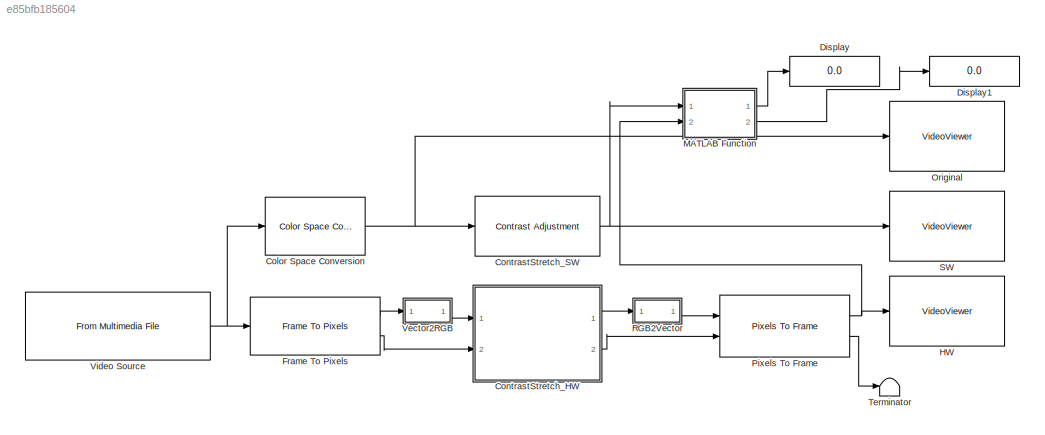
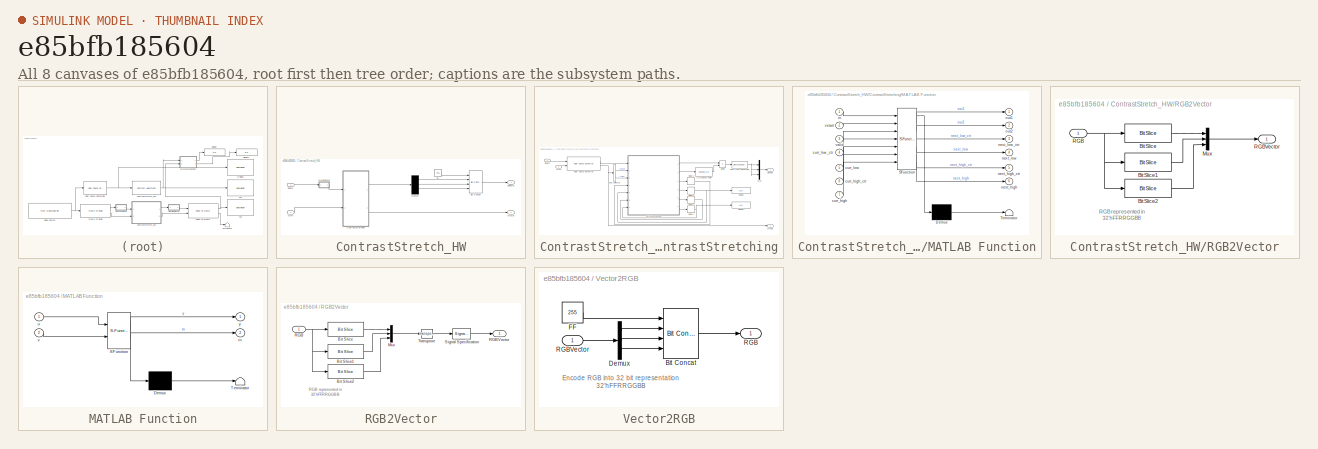
[diagram: thumbnail index - all 8 canvases of the model, root first then tree order]
MODEL slx_e85bfb185604
KIND model
CONFIG AbsTol = auto
CONFIG EnableMultiTasking = off
CONFIG FixedStep = auto
CONFIG InitFcn = Ts = 1e-3;\nTs_240p = 402*324*Ts;\nTs_480p = 525*800*Ts;\n\n
CONFIG MaxStep = auto
CONFIG MinStep = auto
CONFIG RelTol = 1e-3
CONFIG SampleTimeConstraint = Unconstrained
CONFIG SolverName = FixedStepDiscrete
CONFIG StartTime = 0.0
CONFIG StopTime = Ts_240p*20
BLOCK [Reference] Color Space Conversion  REF=visionconversions/Color Space
 Conversion
  Ports = [1, 1]
  SourceBlock = visionconversions/Color Space\n Conversion
  SourceProductBaseCode = VP
  SourceType = Color Space Conversion
BLOCK [SubSystem] ContrastStretch_HW
  Ports = [2, 2]
  RequestExecContextInheritance = off
  TreatAsAtomicUnit = on
BLOCK [Reference] ContrastStretch_HW/Bit Concat  REF=hdlsllib/Logic and Bit
Operations/Bit Concat
  Ports = [4, 1]
  SourceBlock = hdlsllib/Logic and Bit\nOperations/Bit Concat
  SourceProductBaseCode = SL
  SourceType = Bit Concat
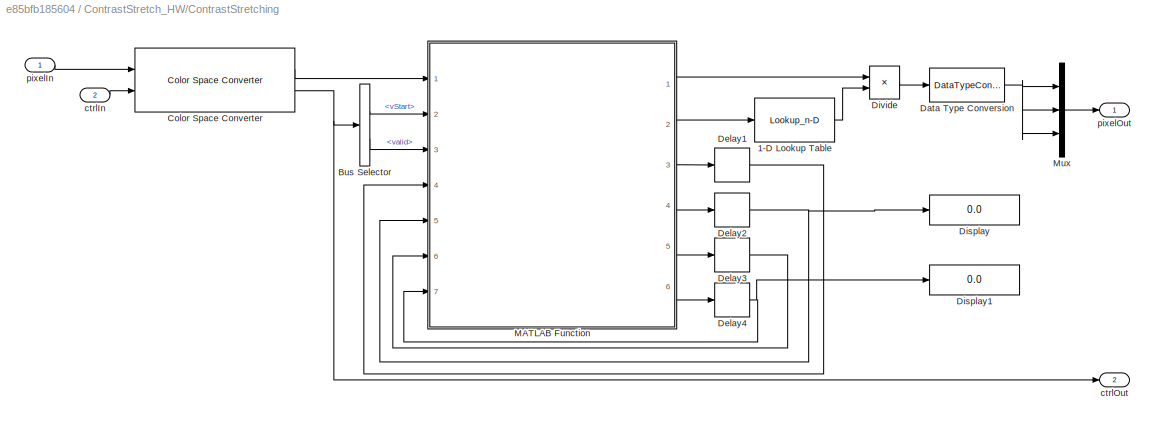
BLOCK [SubSystem] ContrastStretch_HW/ContrastStretching
  Ports = [2, 2]
  RequestExecContextInheritance = off
  TreatAsAtomicUnit = on
BLOCK [Lookup_n-D] ContrastStretch_HW/ContrastStretching/1-D Lookup Table
  BreakpointsForDimension1 = [1:255]
  BreakpointsForDimension1FirstPoint = 10
  BreakpointsForDimension1Spacing = 12
  BreakpointsForDimension2FirstPoint = 10
  BreakpointsForDimension2Spacing = 12
  DiagnosticForOutOfRangeInput = Error
  IndexSearchMethod = Evenly spaced points
  InputPortMap = u0
  InternalRulePriority = Speed
  InterpMethod = Flat
  LookupTableObject = ''
  NumberOfTableDimensions = 1
  OutDataTypeStr = fixdt(0,16,8)
  Ports = [1, 1]
  RndMeth = Simplest
  Table = 255./[1:255]
  TableDataTypeStr = fixdt(0,16,8)
BLOCK [BusSelector] ContrastStretch_HW/ContrastStretching/Bus Selector
  OutputSignals = vStart,valid
  Ports = [1, 2]
BLOCK [Reference] ContrastStretch_HW/ContrastStretching/Color Space Converter  REF=visionhdlconversions/Color Space Converter
  Ports = [2, 2]
  SourceBlock = visionhdlconversions/Color Space Converter
  SourceProductBaseCode = VT
  SourceType = Color Space Converter
BLOCK [DataTypeConversion] ContrastStretch_HW/ContrastStretching/Data Type Conversion
  OutDataTypeStr = uint8
  RndMeth = Floor
BLOCK [Delay] ContrastStretch_HW/ContrastStretching/Delay1
  DelayLength = 1
  InitialCondition = 0
  InputPortMap = u0
  Ports = [1, 1]
BLOCK [Delay] ContrastStretch_HW/ContrastStretching/Delay2
  DelayLength = 1
  InitialCondition = 150
  InputPortMap = u0
  Ports = [1, 1]
BLOCK [Delay] ContrastStretch_HW/ContrastStretching/Delay3
  DelayLength = 1
  InitialCondition = 0
  InputPortMap = u0
  Ports = [1, 1]
BLOCK [Delay] ContrastStretch_HW/ContrastStretching/Delay4
  DelayLength = 1
  InitialCondition = 250
  InputPortMap = u0
  Ports = [1, 1]
BLOCK [Display] ContrastStretch_HW/ContrastStretching/Display
  Decimation = 1
  Ports = [1]
BLOCK [Display] ContrastStretch_HW/ContrastStretching/Display1
  Decimation = 1
  Ports = [1]
BLOCK [Product] ContrastStretch_HW/ContrastStretching/Divide
  Inputs = **
  Ports = [2, 1]
  RndMeth = Zero
  SaturateOnIntegerOverflow = on
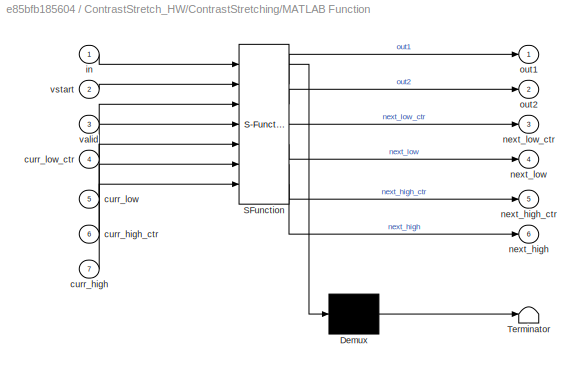
BLOCK [SubSystem] ContrastStretch_HW/ContrastStretching/MATLAB Function
  ErrorFcn = Stateflow.Translate.translate
  PermitHierarchicalResolution = ExplicitOnly
  Ports = [7, 6]
  RequestExecContextInheritance = off
  SFBlockType = MATLAB Function
  TreatAsAtomicUnit = on
BLOCK [Demux] ContrastStretch_HW/ContrastStretching/MATLAB Function/ Demux 
  Outputs = 1
  Ports = [1, 1]
BLOCK [S-Function] ContrastStretch_HW/ContrastStretching/MATLAB Function/ SFunction 
  EnableBusSupport = on
  FunctionName = sf_sfun
  PortCounts = [7 7]
  Ports = [7, 7]
  SFcnIsStateOwnerBlock = off
  SFunctionDeploymentMode = off
  Tag = Stateflow S-Function 2
BLOCK [Terminator] ContrastStretch_HW/ContrastStretching/MATLAB Function/ Terminator 
BLOCK [Inport] ContrastStretch_HW/ContrastStretching/MATLAB Function/curr_high
  Port = 7
BLOCK [Inport] ContrastStretch_HW/ContrastStretching/MATLAB Function/curr_high_ctr
  Port = 6
BLOCK [Inport] ContrastStretch_HW/ContrastStretching/MATLAB Function/curr_low
  Port = 5
BLOCK [Inport] ContrastStretch_HW/ContrastStretching/MATLAB Function/curr_low_ctr
  Port = 4
BLOCK [Inport] ContrastStretch_HW/ContrastStretching/MATLAB Function/in
BLOCK [Outport] ContrastStretch_HW/ContrastStretching/MATLAB Function/next_high
  Port = 6
  VectorParamsAs1DForOutWhenUnconnected = off
BLOCK [Outport] ContrastStretch_HW/ContrastStretching/MATLAB Function/next_high_ctr
  Port = 5
  VectorParamsAs1DForOutWhenUnconnected = off
BLOCK [Outport] ContrastStretch_HW/ContrastStretching/MATLAB Function/next_low
  Port = 4
  VectorParamsAs1DForOutWhenUnconnected = off
BLOCK [Outport] ContrastStretch_HW/ContrastStretching/MATLAB Function/next_low_ctr
  Port = 3
  VectorParamsAs1DForOutWhenUnconnected = off
BLOCK [Outport] ContrastStretch_HW/ContrastStretching/MATLAB Function/out1
  VectorParamsAs1DForOutWhenUnconnected = off
BLOCK [Outport] ContrastStretch_HW/ContrastStretching/MATLAB Function/out2
  Port = 2
  VectorParamsAs1DForOutWhenUnconnected = off
BLOCK [Inport] ContrastStretch_HW/ContrastStretching/MATLAB Function/valid
  Port = 3
BLOCK [Inport] ContrastStretch_HW/ContrastStretching/MATLAB Function/vstart
  Port = 2
BLOCK [Mux] ContrastStretch_HW/ContrastStretching/Mux
  DisplayOption = bar
  Inputs = 3
  Ports = [3, 1]
BLOCK [Inport] ContrastStretch_HW/ContrastStretching/ctrlIn
  Port = 2
BLOCK [Outport] ContrastStretch_HW/ContrastStretching/ctrlOut
  Port = 2
  VectorParamsAs1DForOutWhenUnconnected = off
BLOCK [Inport] ContrastStretch_HW/ContrastStretching/pixelIn
BLOCK [Outport] ContrastStretch_HW/ContrastStretching/pixelOut
  VectorParamsAs1DForOutWhenUnconnected = off
BLOCK [Demux] ContrastStretch_HW/Demux
  Outputs = 3
  Ports = [1, 3]
BLOCK [Constant] ContrastStretch_HW/FF
  OutDataTypeStr = uint8
  SampleTime = Ts
  Value = 255
BLOCK [SubSystem] ContrastStretch_HW/RGB2Vector
  Ports = [1, 1]
  RequestExecContextInheritance = off
  ShowPortLabels = none
BLOCK [Reference] ContrastStretch_HW/RGB2Vector/Bit Slice  REF=hdlsllib/Logic and Bit
Operations/Bit Slice
  Ports = [1, 1]
  SourceBlock = hdlsllib/Logic and Bit\nOperations/Bit Slice
  SourceProductBaseCode = SL
  SourceType = Bit Slice
BLOCK [Reference] ContrastStretch_HW/RGB2Vector/Bit Slice1  REF=hdlsllib/Logic and Bit
Operations/Bit Slice
  Ports = [1, 1]
  SourceBlock = hdlsllib/Logic and Bit\nOperations/Bit Slice
  SourceProductBaseCode = SL
  SourceType = Bit Slice
BLOCK [Reference] ContrastStretch_HW/RGB2Vector/Bit Slice2  REF=hdlsllib/Logic and Bit
Operations/Bit Slice
  Ports = [1, 1]
  SourceBlock = hdlsllib/Logic and Bit\nOperations/Bit Slice
  SourceProductBaseCode = SL
  SourceType = Bit Slice
BLOCK [Mux] ContrastStretch_HW/RGB2Vector/Mux
  DisplayOption = bar
  Inputs = 3
  Ports = [3, 1]
BLOCK [Inport] ContrastStretch_HW/RGB2Vector/RGB
BLOCK [Outport] ContrastStretch_HW/RGB2Vector/RGBVector
  VectorParamsAs1DForOutWhenUnconnected = off
BLOCK [Inport] ContrastStretch_HW/ctrlIn
  Port = 2
BLOCK [Outport] ContrastStretch_HW/ctrlOut
  Port = 2
  VectorParamsAs1DForOutWhenUnconnected = off
BLOCK [Inport] ContrastStretch_HW/pixelIn
BLOCK [Outport] ContrastStretch_HW/pixelOut
  VectorParamsAs1DForOutWhenUnconnected = off
BLOCK [Reference] ContrastStretch_SW  REF=visionanalysis/Contrast Adjustment
  Ports = [1, 1]
  SourceBlock = visionanalysis/Contrast Adjustment
  SourceProductBaseCode = VP
  SourceType = Contrast Adjustment
BLOCK [Display] Display
  Decimation = 1
  Ports = [1]
BLOCK [Display] Display1
  Decimation = 1
  Ports = [1]
BLOCK [Reference] Frame To Pixels  REF=visionhdlio/Frame To Pixels
  Ports = [1, 2]
  SourceBlock = visionhdlio/Frame To Pixels
  SourceProductBaseCode = VT
  SourceType = Frame To Pixels
BLOCK [VideoViewer] HW
  FigPos = [414 661 688 515]
  Ports = [1]
  ScopeSpecificationString = vipscopes.VideoViewerScopeCfg('CurrentConfiguration', extmgr.ConfigurationSet(extmgr.Configuration('Core','General UI',true),extmgr.Configuration('Core','Source UI',true),extmgr.Configuration('Sources','WiredSimulink',true),extmgr.Configuration('Sources','Streaming',false),extmgr.Configuration('Sources','SimulinkEvent',false),extmgr.Configuration('Sources','Workspace',false),extmgr.Configuration('...<+957ch>
  colormapValue = gray(256)
BLOCK [SubSystem] MATLAB Function
  ErrorFcn = Stateflow.Translate.translate
  PermitHierarchicalResolution = ExplicitOnly
  Ports = [2, 2]
  RequestExecContextInheritance = off
  SFBlockType = MATLAB Function
  TreatAsAtomicUnit = on
BLOCK [Demux] MATLAB Function/ Demux 
  Outputs = 1
  Ports = [1, 1]
BLOCK [S-Function] MATLAB Function/ SFunction 
  EnableBusSupport = on
  FunctionName = sf_sfun
  PortCounts = [2 3]
  Ports = [2, 3]
  SFcnIsStateOwnerBlock = off
  SFunctionDeploymentMode = off
  Tag = Stateflow S-Function 1
BLOCK [Terminator] MATLAB Function/ Terminator 
BLOCK [Outport] MATLAB Function/m
  Port = 2
  VectorParamsAs1DForOutWhenUnconnected = off
BLOCK [Inport] MATLAB Function/u
BLOCK [Inport] MATLAB Function/v
  Port = 2
BLOCK [Outport] MATLAB Function/y
  VectorParamsAs1DForOutWhenUnconnected = off
BLOCK [VideoViewer] Original
  FigPos = [65 817 688 510]
  Ports = [1]
  ScopeSpecificationString = vipscopes.VideoViewerScopeCfg('CurrentConfiguration', extmgr.ConfigurationSet(extmgr.Configuration('Core','General UI',true),extmgr.Configuration('Core','Source UI',true),extmgr.Configuration('Sources','WiredSimulink',true),extmgr.Configuration('Sources','Streaming',false),extmgr.Configuration('Sources','SimulinkEvent',false),extmgr.Configuration('Sources','Workspace',false),extmgr.Configuration('...<+955ch>
  colormapValue = gray(256)
BLOCK [Reference] Pixels To Frame  REF=visionhdlio/Pixels To Frame
  Ports = [2, 2]
  SourceBlock = visionhdlio/Pixels To Frame
  SourceProductBaseCode = VT
  SourceType = Pixels To Frame
BLOCK [SubSystem] RGB2Vector
  Ports = [1, 1]
  RequestExecContextInheritance = off
  ShowPortLabels = none
BLOCK [Reference] RGB2Vector/Bit Slice  REF=hdlsllib/Logic and Bit
Operations/Bit Slice
  Ports = [1, 1]
  SourceBlock = hdlsllib/Logic and Bit\nOperations/Bit Slice
  SourceProductBaseCode = SL
  SourceType = Bit Slice
BLOCK [Reference] RGB2Vector/Bit Slice1  REF=hdlsllib/Logic and Bit
Operations/Bit Slice
  Ports = [1, 1]
  SourceBlock = hdlsllib/Logic and Bit\nOperations/Bit Slice
  SourceProductBaseCode = SL
  SourceType = Bit Slice
BLOCK [Reference] RGB2Vector/Bit Slice2  REF=hdlsllib/Logic and Bit
Operations/Bit Slice
  Ports = [1, 1]
  SourceBlock = hdlsllib/Logic and Bit\nOperations/Bit Slice
  SourceProductBaseCode = SL
  SourceType = Bit Slice
BLOCK [Mux] RGB2Vector/Mux
  DisplayOption = bar
  Inputs = 3
  Ports = [3, 1]
BLOCK [Inport] RGB2Vector/RGB
BLOCK [Outport] RGB2Vector/RGBVector
  VectorParamsAs1DForOutWhenUnconnected = off
BLOCK [SignalSpecification] RGB2Vector/Signal Specification
  SignalType = real
BLOCK [Math] RGB2Vector/Transpose
  Operator = transpose
  Ports = [1, 1]
  SignedPower = on
BLOCK [VideoViewer] SW
  FigPos = [-8 660 688 514]
  Ports = [1]
  ScopeSpecificationString = vipscopes.VideoViewerScopeCfg('CurrentConfiguration', extmgr.ConfigurationSet(extmgr.Configuration('Core','General UI',true),extmgr.Configuration('Core','Source UI',true),extmgr.Configuration('Sources','WiredSimulink',true),extmgr.Configuration('Sources','Streaming',false),extmgr.Configuration('Sources','SimulinkEvent',false),extmgr.Configuration('Sources','Workspace',false),extmgr.Configuration('...<+956ch>
  colormapValue = gray(256)
BLOCK [Terminator] Terminator
BLOCK [SubSystem] Vector2RGB
  Ports = [1, 1]
  RequestExecContextInheritance = off
  ShowPortLabels = none
BLOCK [Reference] Vector2RGB/Bit Concat  REF=hdlsllib/Logic and Bit
Operations/Bit Concat
  Ports = [4, 1]
  SourceBlock = hdlsllib/Logic and Bit\nOperations/Bit Concat
  SourceProductBaseCode = SL
  SourceType = Bit Concat
BLOCK [Demux] Vector2RGB/Demux
  Outputs = 3
  Ports = [1, 3]
BLOCK [Constant] Vector2RGB/FF
  OutDataTypeStr = uint8
  SampleTime = Ts
  Value = 255
BLOCK [Outport] Vector2RGB/RGB
  VectorParamsAs1DForOutWhenUnconnected = off
BLOCK [Inport] Vector2RGB/RGBVector
BLOCK [Reference] Video Source  REF=dspvision/From Multimedia File
  Ports = [0, 1]
  SourceBlock = dspvision/From Multimedia File
  SourceProductBaseCode = DS,HW,VP
  SourceType = From Multimedia File
ANNOTATION ContrastStretch_HW/RGB2Vector: RGB represented in 32'hFFRRGGBB
ANNOTATION RGB2Vector: RGB represented in 32'hFFRRGGBB
ANNOTATION Vector2RGB: Encode RGB into 32 bit representation 32'hFFRRGGBB
NET Color Space Conversion:1 -> ContrastStretch_SW:1, Original:1
LINE ContrastStretch_HW/Bit Concat:1 -> ContrastStretch_HW/pixelOut:1
LINE ContrastStretch_HW/ContrastStretching/1-D Lookup Table:1 -> ContrastStretch_HW/ContrastStretching/Divide:2
LINE ContrastStretch_HW/ContrastStretching/Bus Selector:1 -> ContrastStretch_HW/ContrastStretching/MATLAB Function:2
LINE ContrastStretch_HW/ContrastStretching/Bus Selector:2 -> ContrastStretch_HW/ContrastStretching/MATLAB Function:3
LINE ContrastStretch_HW/ContrastStretching/Color Space Converter:1 -> ContrastStretch_HW/ContrastStretching/MATLAB Function:1
NET ContrastStretch_HW/ContrastStretching/Color Space Converter:2 -> ContrastStretch_HW/ContrastStretching/Bus Selector:1, ContrastStretch_HW/ContrastStretching/ctrlOut:1
NET ContrastStretch_HW/ContrastStretching/Data Type Conversion:1 -> ContrastStretch_HW/ContrastStretching/Mux:1, ContrastStretch_HW/ContrastStretching/Mux:2, ContrastStretch_HW/ContrastStretching/Mux:3
LINE ContrastStretch_HW/ContrastStretching/Delay1:1 -> ContrastStretch_HW/ContrastStretching/MATLAB Function:4
NET ContrastStretch_HW/ContrastStretching/Delay2:1 -> ContrastStretch_HW/ContrastStretching/Display:1, ContrastStretch_HW/ContrastStretching/MATLAB Function:5
LINE ContrastStretch_HW/ContrastStretching/Delay3:1 -> ContrastStretch_HW/ContrastStretching/MATLAB Function:6
NET ContrastStretch_HW/ContrastStretching/Delay4:1 -> ContrastStretch_HW/ContrastStretching/Display1:1, ContrastStretch_HW/ContrastStretching/MATLAB Function:7
LINE ContrastStretch_HW/ContrastStretching/Divide:1 -> ContrastStretch_HW/ContrastStretching/Data Type Conversion:1
LINE ContrastStretch_HW/ContrastStretching/MATLAB Function:1 -> ContrastStretch_HW/ContrastStretching/Divide:1
LINE ContrastStretch_HW/ContrastStretching/MATLAB Function:2 -> ContrastStretch_HW/ContrastStretching/1-D Lookup Table:1
LINE ContrastStretch_HW/ContrastStretching/MATLAB Function:3 -> ContrastStretch_HW/ContrastStretching/Delay1:1
LINE ContrastStretch_HW/ContrastStretching/MATLAB Function:4 -> ContrastStretch_HW/ContrastStretching/Delay2:1
LINE ContrastStretch_HW/ContrastStretching/MATLAB Function:5 -> ContrastStretch_HW/ContrastStretching/Delay3:1
LINE ContrastStretch_HW/ContrastStretching/MATLAB Function:6 -> ContrastStretch_HW/ContrastStretching/Delay4:1
LINE ContrastStretch_HW/ContrastStretching/Mux:1 -> ContrastStretch_HW/ContrastStretching/pixelOut:1
LINE ContrastStretch_HW/ContrastStretching/ctrlIn:1 -> ContrastStretch_HW/ContrastStretching/Color Space Converter:2
LINE ContrastStretch_HW/ContrastStretching/pixelIn:1 -> ContrastStretch_HW/ContrastStretching/Color Space Converter:1
LINE ContrastStretch_HW/ContrastStretching:1 -> ContrastStretch_HW/Demux:1
LINE ContrastStretch_HW/ContrastStretching:2 -> ContrastStretch_HW/ctrlOut:1
LINE ContrastStretch_HW/Demux:1 -> ContrastStretch_HW/Bit Concat:2
LINE ContrastStretch_HW/Demux:2 -> ContrastStretch_HW/Bit Concat:3
LINE ContrastStretch_HW/Demux:3 -> ContrastStretch_HW/Bit Concat:4
LINE ContrastStretch_HW/FF:1 -> ContrastStretch_HW/Bit Concat:1
LINE ContrastStretch_HW/RGB2Vector/Bit Slice1:1 -> ContrastStretch_HW/RGB2Vector/Mux:2
LINE ContrastStretch_HW/RGB2Vector/Bit Slice2:1 -> ContrastStretch_HW/RGB2Vector/Mux:3
LINE ContrastStretch_HW/RGB2Vector/Bit Slice:1 -> ContrastStretch_HW/RGB2Vector/Mux:1
LINE ContrastStretch_HW/RGB2Vector/Mux:1 -> ContrastStretch_HW/RGB2Vector/RGBVector:1
NET ContrastStretch_HW/RGB2Vector/RGB:1 -> ContrastStretch_HW/RGB2Vector/Bit Slice1:1, ContrastStretch_HW/RGB2Vector/Bit Slice2:1, ContrastStretch_HW/RGB2Vector/Bit Slice:1
LINE ContrastStretch_HW/RGB2Vector:1 -> ContrastStretch_HW/ContrastStretching:1
LINE ContrastStretch_HW/ctrlIn:1 -> ContrastStretch_HW/ContrastStretching:2
LINE ContrastStretch_HW/pixelIn:1 -> ContrastStretch_HW/RGB2Vector:1
LINE ContrastStretch_HW:1 -> RGB2Vector:1
LINE ContrastStretch_HW:2 -> Pixels To Frame:2
NET ContrastStretch_SW:1 -> MATLAB Function:1, SW:1
LINE Frame To Pixels:1 -> Vector2RGB:1
LINE Frame To Pixels:2 -> ContrastStretch_HW:2
LINE MATLAB Function:1 -> Display:1
LINE MATLAB Function:2 -> Display1:1
NET Pixels To Frame:1 -> HW:1, MATLAB Function:2
LINE Pixels To Frame:2 -> Terminator:1
LINE RGB2Vector/Bit Slice1:1 -> RGB2Vector/Mux:2
LINE RGB2Vector/Bit Slice2:1 -> RGB2Vector/Mux:3
LINE RGB2Vector/Bit Slice:1 -> RGB2Vector/Mux:1
LINE RGB2Vector/Mux:1 -> RGB2Vector/Transpose:1
NET RGB2Vector/RGB:1 -> RGB2Vector/Bit Slice1:1, RGB2Vector/Bit Slice2:1, RGB2Vector/Bit Slice:1
LINE RGB2Vector/Signal Specification:1 -> RGB2Vector/RGBVector:1
LINE RGB2Vector/Transpose:1 -> RGB2Vector/Signal Specification:1
LINE RGB2Vector:1 -> Pixels To Frame:1
LINE Vector2RGB/Bit Concat:1 -> Vector2RGB/RGB:1
LINE Vector2RGB/Demux:1 -> Vector2RGB/Bit Concat:2
LINE Vector2RGB/Demux:2 -> Vector2RGB/Bit Concat:3
LINE Vector2RGB/Demux:3 -> Vector2RGB/Bit Concat:4
LINE Vector2RGB/FF:1 -> Vector2RGB/Bit Concat:1
LINE Vector2RGB/RGBVector:1 -> Vector2RGB/Demux:1
LINE Vector2RGB:1 -> ContrastStretch_HW:1
NET Video Source:1 -> Color Space Conversion:1, Frame To Pixels:1
note: NET lines group one-source signal fan-out (src -> all destinations, sorted); 1:1 wires keep LINE
CHART MATLAB Function states=1 transitions=1
  STATE_LABEL 'eML_blk_kernel()'
  STATE_LABEL 'SCRIPT:\nfunction [y,m] = fcn(u,v)\nv = v(:,:,1);\ns = size(v);\ny = sum(sum(abs(u-v)))/(s(1)*s(2));\nm = max(max(abs(u-v)));\n'
CHART ContrastStretch_HW/ContrastStretching/MATLAB Function states=1 transitions=1
  STATE_LABEL 'eML_blk_kernel()'
  STATE_LABEL 'SCRIPT:\nfunction [out1, out2, next_low_ctr, next_low, next_high_ctr, next_high] = calc_limits(in, vstart, valid, curr_low_ctr, curr_low, curr_high_ctr, curr_high)\n\nprob_limit = 2*(640*480)/100;\nstep = 1;\n\nif(vstart==1)\n    next_low_ctr = fi(0,0,20,0);\nelse\n    if((in<curr_low)&(valid==1))\n        next_low_ctr = fi(curr_low_ctr + 1,0,20,0);\n    else\n        next_low_ctr = curr_low_ctr;\n    end\nend\n...<+908ch>'
CHART  states=0 transitions=0
CHART  states=0 transitions=0
